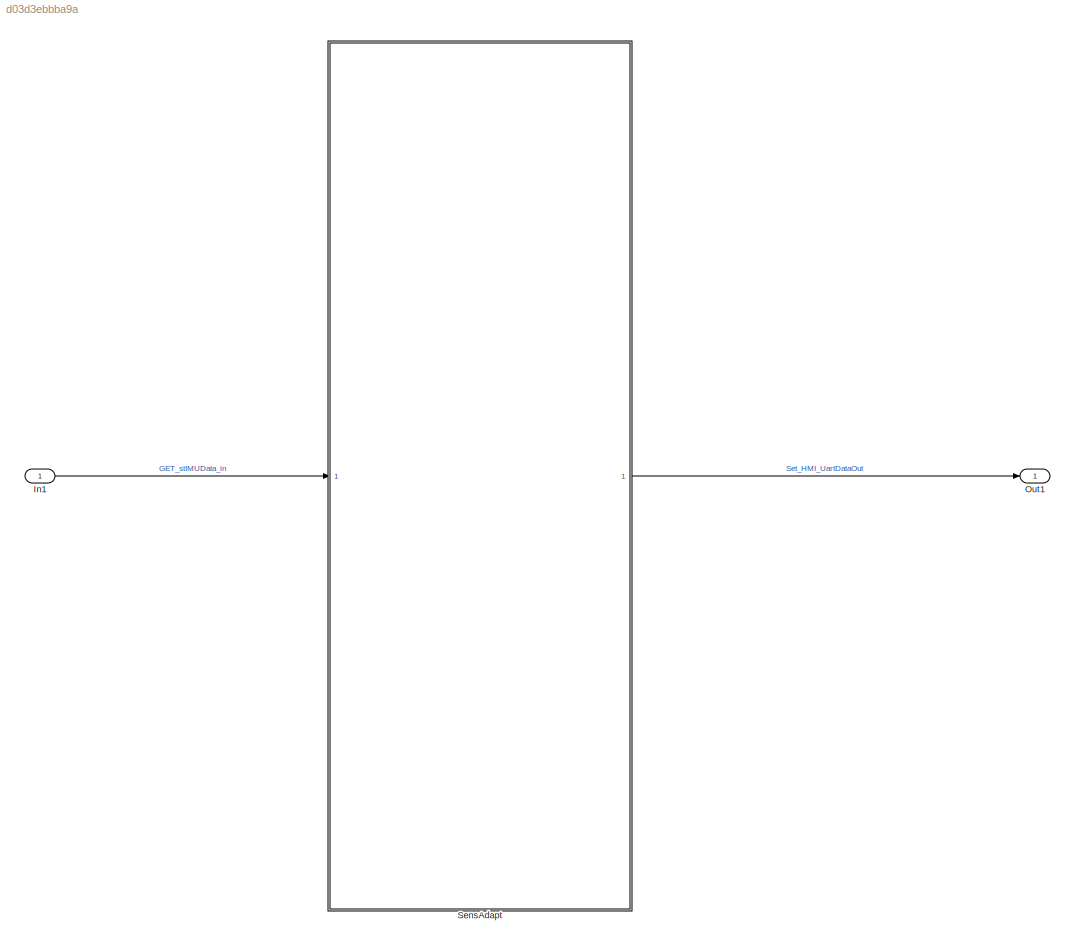
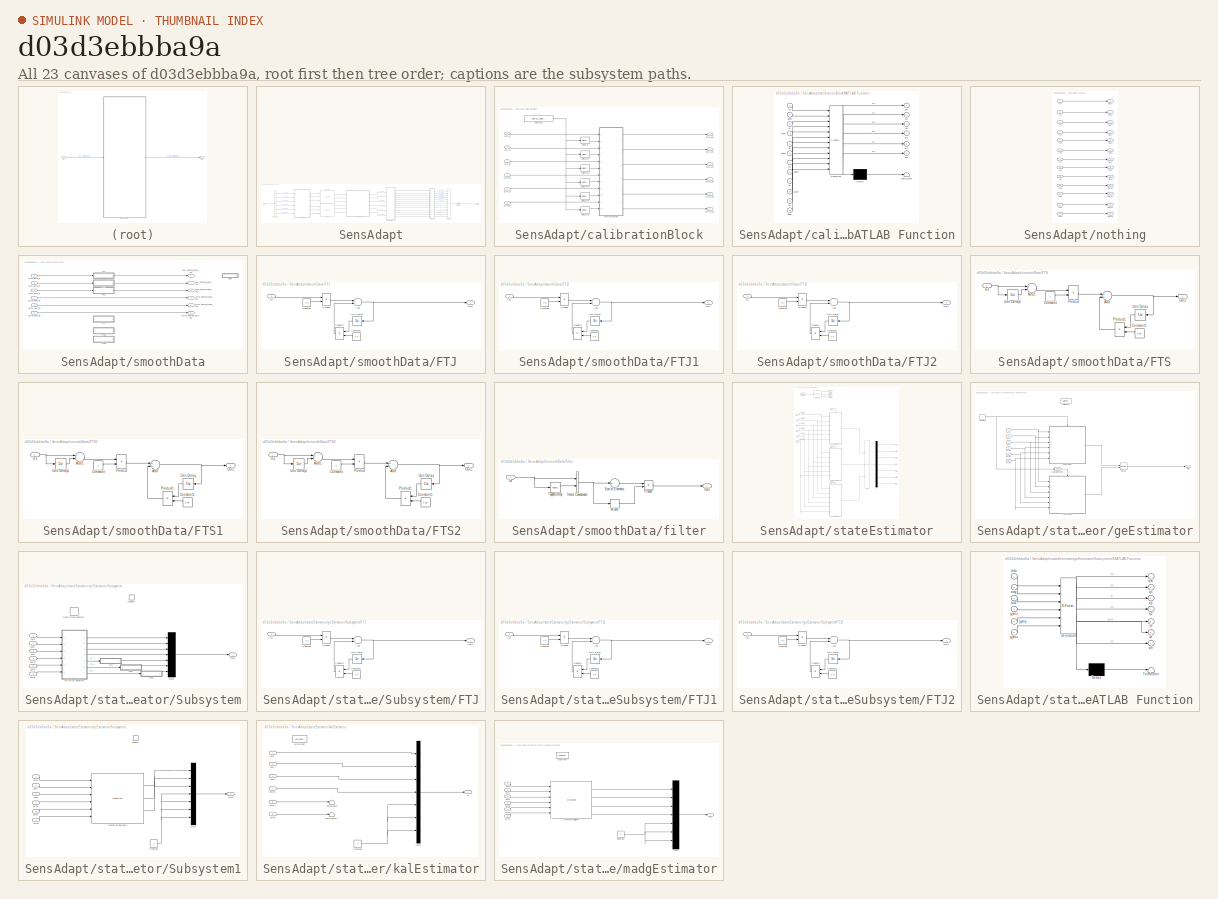
[diagram: thumbnail index - all 23 canvases of the model, root first then tree order]
MODEL slx_d03d3ebbba9a
KIND model
BLOCK [Inport] In1
  BusOutputAsStruct = on
  IconDisplay = Port number
  OutDataTypeStr = Bus: IMU_tstInRawData
BLOCK [Outport] Out1
  IconDisplay = Port number
  OutDataTypeStr = Bus: IMU_tstRawData
BLOCK [SubSystem] SensAdapt
  FunctionWithSeparateData = off
  MaskHideContents = off
  MinAlgLoopOccurrences = off
  Opaque = off
  Ports = [1, 1]
  PropExecContextOutsideSubsystem = off
  RTWSystemCode = Auto
  RequestExecContextInheritance = off
BLOCK [Reference] SensAdapt/AccConv  REF=SensAdapt_lib/AccConv
  Description = acc conversion block
  Ports = [3, 3]
  SourceBlock = SensAdapt_lib/AccConv
  convParam = 3
BLOCK [BusCreator] SensAdapt/Bus Creator
  DisplayOption = bar
  Inputs = 13
  NonVirtualBus = on
  OutDataTypeStr = Bus: IMU_tstRawData
  Ports = [13, 1]
BLOCK [BusSelector] SensAdapt/Bus Selector
  OutputSignals = AccXData,AccYData,AccZData,GyroXData,GyroYData,GyroZData
  Ports = [1, 6]
BLOCK [Reference] SensAdapt/GyroConv  REF=SensAdapt_lib/GyroConv
  Ports = [3, 3]
  SourceBlock = SensAdapt_lib/GyroConv
  convParam = 3
BLOCK [Inport] SensAdapt/In1
  IconDisplay = Port number
BLOCK [Outport] SensAdapt/Out1
  IconDisplay = Port number
BLOCK [UnitDelay] SensAdapt/Unit Delay12
  InputProcessing = Elements as channels (sample based)
  SampleTime = -1
BLOCK [SubSystem] SensAdapt/calibrationBlock
  FunctionWithSeparateData = off
  MaskHideContents = off
  MinAlgLoopOccurrences = off
  Opaque = off
  Ports = [6, 6]
  PropExecContextOutsideSubsystem = off
  RTWFcnNameOpts = Use subsystem name
  RTWSystemCode = Nonreusable function
  RequestExecContextInheritance = off
  TreatAsAtomicUnit = on
BLOCK [Constant] SensAdapt/calibrationBlock/Constant
  OutDataTypeStr = double
  Value = SENS_CalibOffsetCurve
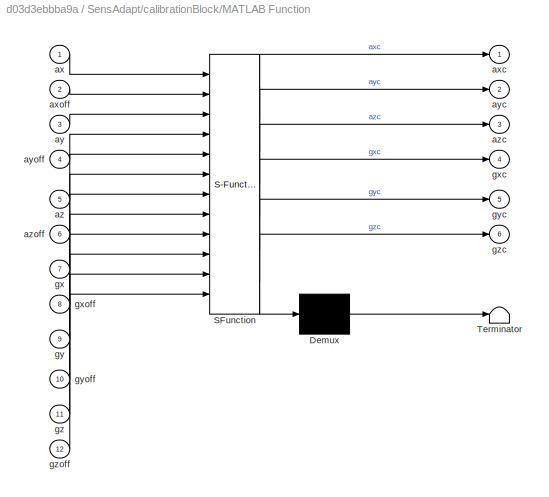
BLOCK [SubSystem] SensAdapt/calibrationBlock/MATLAB Function
  ErrorFcn = Stateflow.Translate.translate
  FunctionWithSeparateData = off
  MaskHideContents = off
  MinAlgLoopOccurrences = off
  Opaque = off
  PermitHierarchicalResolution = ExplicitOnly
  Ports = [12, 6]
  PropExecContextOutsideSubsystem = off
  RTWSystemCode = Auto
  RequestExecContextInheritance = off
  SFBlockType = MATLAB Function
  TreatAsAtomicUnit = on
BLOCK [Demux] SensAdapt/calibrationBlock/MATLAB Function/ Demux 
  Outputs = 1
  Ports = [1, 1]
BLOCK [S-Function] SensAdapt/calibrationBlock/MATLAB Function/ SFunction 
  EnableBusSupport = on
  FunctionName = sf_sfun
  PortCounts = [12 7]
  Ports = [12, 7]
  Tag = Stateflow S-Function SensAdapt 2
BLOCK [Terminator] SensAdapt/calibrationBlock/MATLAB Function/ Terminator 
BLOCK [Inport] SensAdapt/calibrationBlock/MATLAB Function/ax
  IconDisplay = Port number
BLOCK [Outport] SensAdapt/calibrationBlock/MATLAB Function/axc
  IconDisplay = Port number
BLOCK [Inport] SensAdapt/calibrationBlock/MATLAB Function/axoff
  IconDisplay = Port number
  Port = 2
BLOCK [Inport] SensAdapt/calibrationBlock/MATLAB Function/ay
  IconDisplay = Port number
  Port = 3
BLOCK [Outport] SensAdapt/calibrationBlock/MATLAB Function/ayc
  IconDisplay = Port number
  Port = 2
BLOCK [Inport] SensAdapt/calibrationBlock/MATLAB Function/ayoff
  IconDisplay = Port number
  Port = 4
BLOCK [Inport] SensAdapt/calibrationBlock/MATLAB Function/az
  IconDisplay = Port number
  Port = 5
BLOCK [Outport] SensAdapt/calibrationBlock/MATLAB Function/azc
  IconDisplay = Port number
  Port = 3
BLOCK [Inport] SensAdapt/calibrationBlock/MATLAB Function/azoff
  IconDisplay = Port number
  Port = 6
BLOCK [Inport] SensAdapt/calibrationBlock/MATLAB Function/gx
  IconDisplay = Port number
  Port = 7
BLOCK [Outport] SensAdapt/calibrationBlock/MATLAB Function/gxc
  IconDisplay = Port number
  Port = 4
BLOCK [Inport] SensAdapt/calibrationBlock/MATLAB Function/gxoff
  IconDisplay = Port number
  Port = 8
BLOCK [Inport] SensAdapt/calibrationBlock/MATLAB Function/gy
  IconDisplay = Port number
  Port = 9
BLOCK [Outport] SensAdapt/calibrationBlock/MATLAB Function/gyc
  IconDisplay = Port number
  Port = 5
BLOCK [Inport] SensAdapt/calibrationBlock/MATLAB Function/gyoff
  IconDisplay = Port number
  Port = 10
BLOCK [Inport] SensAdapt/calibrationBlock/MATLAB Function/gz
  IconDisplay = Port number
  Port = 11
BLOCK [Outport] SensAdapt/calibrationBlock/MATLAB Function/gzc
  IconDisplay = Port number
  Port = 6
BLOCK [Inport] SensAdapt/calibrationBlock/MATLAB Function/gzoff
  IconDisplay = Port number
  Port = 12
BLOCK [Selector] SensAdapt/calibrationBlock/Selector
  IndexMode = Zero-based
  IndexOptions = Index vector (dialog)
  Indices = 0
  InputPortWidth = 6
  OutputSizes = 1
  Ports = [1, 1]
BLOCK [Selector] SensAdapt/calibrationBlock/Selector1
  IndexMode = Zero-based
  IndexOptions = Index vector (dialog)
  Indices = 1
  InputPortWidth = 6
  OutputSizes = 1
  Ports = [1, 1]
BLOCK [Selector] SensAdapt/calibrationBlock/Selector2
  IndexMode = Zero-based
  IndexOptions = Index vector (dialog)
  Indices = 2
  InputPortWidth = 6
  OutputSizes = 1
  Ports = [1, 1]
BLOCK [Selector] SensAdapt/calibrationBlock/Selector3
  IndexMode = Zero-based
  IndexOptions = Index vector (dialog)
  Indices = 3
  InputPortWidth = 6
  OutputSizes = 1
  Ports = [1, 1]
BLOCK [Selector] SensAdapt/calibrationBlock/Selector4
  IndexMode = Zero-based
  IndexOptions = Index vector (dialog)
  Indices = 4
  InputPortWidth = 6
  OutputSizes = 1
  Ports = [1, 1]
BLOCK [Selector] SensAdapt/calibrationBlock/Selector5
  IndexMode = Zero-based
  IndexOptions = Index vector (dialog)
  Indices = 5
  InputPortWidth = 6
  OutputSizes = 1
  Ports = [1, 1]
BLOCK [Inport] SensAdapt/calibrationBlock/accx_in
  IconDisplay = Port number
BLOCK [Outport] SensAdapt/calibrationBlock/accx_out
  IconDisplay = Port number
  InitialOutput = 0
  OutDataTypeStr = double
BLOCK [Inport] SensAdapt/calibrationBlock/accy_in
  IconDisplay = Port number
  Port = 2
BLOCK [Outport] SensAdapt/calibrationBlock/accy_out
  IconDisplay = Port number
  InitialOutput = 0
  LockScale = on
  OutDataTypeStr = double
  Port = 2
BLOCK [Inport] SensAdapt/calibrationBlock/accz_in
  IconDisplay = Port number
  Port = 3
BLOCK [Outport] SensAdapt/calibrationBlock/accz_out
  IconDisplay = Port number
  InitialOutput = 0
  OutDataTypeStr = double
  Port = 3
BLOCK [Inport] SensAdapt/calibrationBlock/gyrox_in
  IconDisplay = Port number
  Port = 4
BLOCK [Outport] SensAdapt/calibrationBlock/gyrox_out
  IconDisplay = Port number
  InitialOutput = 0
  OutDataTypeStr = double
  Port = 4
BLOCK [Inport] SensAdapt/calibrationBlock/gyroy_in
  IconDisplay = Port number
  Port = 5
BLOCK [Outport] SensAdapt/calibrationBlock/gyroy_out
  IconDisplay = Port number
  InitialOutput = 0
  OutDataTypeStr = double
  Port = 5
BLOCK [Inport] SensAdapt/calibrationBlock/gyroz_in
  IconDisplay = Port number
  Port = 6
BLOCK [Outport] SensAdapt/calibrationBlock/gyroz_out
  IconDisplay = Port number
  InitialOutput = 0
  OutDataTypeStr = double
  Port = 6
BLOCK [SubSystem] SensAdapt/nothing
  FunctionWithSeparateData = off
  MaskHideContents = off
  MinAlgLoopOccurrences = off
  Opaque = off
  Ports = [13, 13]
  PropExecContextOutsideSubsystem = off
  RTWSystemCode = Auto
  RequestExecContextInheritance = off
BLOCK [Inport] SensAdapt/nothing/In1
  IconDisplay = Port number
BLOCK [Inport] SensAdapt/nothing/In10
  IconDisplay = Port number
  Port = 10
BLOCK [Inport] SensAdapt/nothing/In11
  IconDisplay = Port number
  Port = 11
BLOCK [Inport] SensAdapt/nothing/In12
  IconDisplay = Port number
  Port = 12
BLOCK [Inport] SensAdapt/nothing/In13
  IconDisplay = Port number
  Port = 13
BLOCK [Inport] SensAdapt/nothing/In2
  IconDisplay = Port number
  Port = 2
BLOCK [Inport] SensAdapt/nothing/In3
  IconDisplay = Port number
  Port = 3
BLOCK [Inport] SensAdapt/nothing/In4
  IconDisplay = Port number
  Port = 4
BLOCK [Inport] SensAdapt/nothing/In5
  IconDisplay = Port number
  Port = 5
BLOCK [Inport] SensAdapt/nothing/In6
  IconDisplay = Port number
  Port = 6
BLOCK [Inport] SensAdapt/nothing/In7
  IconDisplay = Port number
  Port = 7
BLOCK [Inport] SensAdapt/nothing/In8
  IconDisplay = Port number
  Port = 8
BLOCK [Inport] SensAdapt/nothing/In9
  IconDisplay = Port number
  Port = 9
BLOCK [Outport] SensAdapt/nothing/Out1
  IconDisplay = Port number
BLOCK [Outport] SensAdapt/nothing/Out10
  IconDisplay = Port number
  Port = 10
BLOCK [Outport] SensAdapt/nothing/Out11
  IconDisplay = Port number
  Port = 11
BLOCK [Outport] SensAdapt/nothing/Out12
  IconDisplay = Port number
  Port = 12
BLOCK [Outport] SensAdapt/nothing/Out13
  IconDisplay = Port number
  Port = 13
BLOCK [Outport] SensAdapt/nothing/Out2
  IconDisplay = Port number
  Port = 2
BLOCK [Outport] SensAdapt/nothing/Out3
  IconDisplay = Port number
  Port = 3
BLOCK [Outport] SensAdapt/nothing/Out4
  IconDisplay = Port number
  Port = 4
BLOCK [Outport] SensAdapt/nothing/Out5
  IconDisplay = Port number
  Port = 5
BLOCK [Outport] SensAdapt/nothing/Out6
  IconDisplay = Port number
  Port = 6
BLOCK [Outport] SensAdapt/nothing/Out7
  IconDisplay = Port number
  Port = 7
BLOCK [Outport] SensAdapt/nothing/Out8
  IconDisplay = Port number
  Port = 8
BLOCK [Outport] SensAdapt/nothing/Out9
  IconDisplay = Port number
  Port = 9
BLOCK [SubSystem] SensAdapt/smoothData
  FunctionWithSeparateData = off
  MaskHideContents = off
  MinAlgLoopOccurrences = off
  Opaque = off
  Ports = [6, 6]
  PropExecContextOutsideSubsystem = off
  RTWFcnNameOpts = Use subsystem name
  RTWSystemCode = Nonreusable function
  RequestExecContextInheritance = off
  TreatAsAtomicUnit = on
BLOCK [SubSystem] SensAdapt/smoothData/FTJ
  FunctionWithSeparateData = off
  MaskHideContents = off
  MinAlgLoopOccurrences = off
  Opaque = off
  Ports = [1, 1]
  PropExecContextOutsideSubsystem = off
  RTWSystemCode = Auto
  RequestExecContextInheritance = off
BLOCK [Sum] SensAdapt/smoothData/FTJ/Add
  InputSameDT = off
  OutDataTypeStr = Inherit: Inherit via internal rule
  Ports = [2, 1]
  SaturateOnIntegerOverflow = off
BLOCK [Constant] SensAdapt/smoothData/FTJ/Constant
  Value = 0.2
BLOCK [Constant] SensAdapt/smoothData/FTJ/Constant1
  Value = 0.8
BLOCK [Inport] SensAdapt/smoothData/FTJ/In1
  IconDisplay = Port number
BLOCK [Outport] SensAdapt/smoothData/FTJ/Out1
  IconDisplay = Port number
BLOCK [Product] SensAdapt/smoothData/FTJ/Product
  InputSameDT = off
  OutDataTypeStr = Inherit: Inherit via internal rule
  Ports = [2, 1]
  RndMeth = Floor
  SaturateOnIntegerOverflow = off
BLOCK [Product] SensAdapt/smoothData/FTJ/Product1
  InputSameDT = off
  OutDataTypeStr = Inherit: Inherit via internal rule
  Ports = [2, 1]
  RndMeth = Floor
  SaturateOnIntegerOverflow = off
BLOCK [UnitDelay] SensAdapt/smoothData/FTJ/Unit Delay
  InputProcessing = Elements as channels (sample based)
  SampleTime = -1
BLOCK [SubSystem] SensAdapt/smoothData/FTJ1
  FunctionWithSeparateData = off
  MaskHideContents = off
  MinAlgLoopOccurrences = off
  Opaque = off
  Ports = [1, 1]
  PropExecContextOutsideSubsystem = off
  RTWSystemCode = Auto
  RequestExecContextInheritance = off
BLOCK [Sum] SensAdapt/smoothData/FTJ1/Add
  InputSameDT = off
  OutDataTypeStr = Inherit: Inherit via internal rule
  Ports = [2, 1]
  SaturateOnIntegerOverflow = off
BLOCK [Constant] SensAdapt/smoothData/FTJ1/Constant
  Value = 0.2
BLOCK [Constant] SensAdapt/smoothData/FTJ1/Constant1
  Value = 0.8
BLOCK [Inport] SensAdapt/smoothData/FTJ1/In1
  IconDisplay = Port number
BLOCK [Outport] SensAdapt/smoothData/FTJ1/Out1
  IconDisplay = Port number
BLOCK [Product] SensAdapt/smoothData/FTJ1/Product
  InputSameDT = off
  OutDataTypeStr = Inherit: Inherit via internal rule
  Ports = [2, 1]
  RndMeth = Floor
  SaturateOnIntegerOverflow = off
BLOCK [Product] SensAdapt/smoothData/FTJ1/Product1
  InputSameDT = off
  OutDataTypeStr = Inherit: Inherit via internal rule
  Ports = [2, 1]
  RndMeth = Floor
  SaturateOnIntegerOverflow = off
BLOCK [UnitDelay] SensAdapt/smoothData/FTJ1/Unit Delay
  InputProcessing = Elements as channels (sample based)
  SampleTime = -1
BLOCK [SubSystem] SensAdapt/smoothData/FTJ2
  FunctionWithSeparateData = off
  MaskHideContents = off
  MinAlgLoopOccurrences = off
  Opaque = off
  Ports = [1, 1]
  PropExecContextOutsideSubsystem = off
  RTWSystemCode = Auto
  RequestExecContextInheritance = off
BLOCK [Sum] SensAdapt/smoothData/FTJ2/Add
  InputSameDT = off
  OutDataTypeStr = Inherit: Inherit via internal rule
  Ports = [2, 1]
  SaturateOnIntegerOverflow = off
BLOCK [Constant] SensAdapt/smoothData/FTJ2/Constant
  Value = 0.2
BLOCK [Constant] SensAdapt/smoothData/FTJ2/Constant1
  Value = 0.8
BLOCK [Inport] SensAdapt/smoothData/FTJ2/In1
  IconDisplay = Port number
BLOCK [Outport] SensAdapt/smoothData/FTJ2/Out1
  IconDisplay = Port number
BLOCK [Product] SensAdapt/smoothData/FTJ2/Product
  InputSameDT = off
  OutDataTypeStr = Inherit: Inherit via internal rule
  Ports = [2, 1]
  RndMeth = Floor
  SaturateOnIntegerOverflow = off
BLOCK [Product] SensAdapt/smoothData/FTJ2/Product1
  InputSameDT = off
  OutDataTypeStr = Inherit: Inherit via internal rule
  Ports = [2, 1]
  RndMeth = Floor
  SaturateOnIntegerOverflow = off
BLOCK [UnitDelay] SensAdapt/smoothData/FTJ2/Unit Delay
  InputProcessing = Elements as channels (sample based)
  SampleTime = -1
BLOCK [SubSystem] SensAdapt/smoothData/FTS
  Commented = on
  FunctionWithSeparateData = off
  MaskHideContents = off
  MinAlgLoopOccurrences = off
  Opaque = off
  Ports = [1, 1]
  PropExecContextOutsideSubsystem = off
  RTWSystemCode = Auto
  RequestExecContextInheritance = off
BLOCK [Sum] SensAdapt/smoothData/FTS/Add
  InputSameDT = off
  OutDataTypeStr = Inherit: Inherit via internal rule
  Ports = [2, 1]
  SaturateOnIntegerOverflow = off
BLOCK [Sum] SensAdapt/smoothData/FTS/Add1
  InputSameDT = off
  Inputs = +-
  OutDataTypeStr = Inherit: Inherit via internal rule
  Ports = [2, 1]
  SaturateOnIntegerOverflow = off
BLOCK [Constant] SensAdapt/smoothData/FTS/Constant
  Value = 2
BLOCK [Constant] SensAdapt/smoothData/FTS/Constant1
  Value = 0.98
BLOCK [Inport] SensAdapt/smoothData/FTS/In1
  IconDisplay = Port number
BLOCK [Outport] SensAdapt/smoothData/FTS/Out1
  IconDisplay = Port number
BLOCK [Product] SensAdapt/smoothData/FTS/Product
  InputSameDT = off
  OutDataTypeStr = Inherit: Inherit via internal rule
  Ports = [2, 1]
  RndMeth = Floor
  SaturateOnIntegerOverflow = off
BLOCK [Product] SensAdapt/smoothData/FTS/Product1
  InputSameDT = off
  OutDataTypeStr = Inherit: Inherit via internal rule
  Ports = [2, 1]
  RndMeth = Floor
  SaturateOnIntegerOverflow = off
BLOCK [UnitDelay] SensAdapt/smoothData/FTS/Unit Delay
  InputProcessing = Elements as channels (sample based)
  SampleTime = -1
BLOCK [UnitDelay] SensAdapt/smoothData/FTS/Unit Delay1
  InputProcessing = Elements as channels (sample based)
  SampleTime = -1
BLOCK [SubSystem] SensAdapt/smoothData/FTS1
  Commented = on
  FunctionWithSeparateData = off
  MaskHideContents = off
  MinAlgLoopOccurrences = off
  Opaque = off
  Ports = [1, 1]
  PropExecContextOutsideSubsystem = off
  RTWSystemCode = Auto
  RequestExecContextInheritance = off
BLOCK [Sum] SensAdapt/smoothData/FTS1/Add
  InputSameDT = off
  OutDataTypeStr = Inherit: Inherit via internal rule
  Ports = [2, 1]
  SaturateOnIntegerOverflow = off
BLOCK [Sum] SensAdapt/smoothData/FTS1/Add1
  InputSameDT = off
  Inputs = +-
  OutDataTypeStr = Inherit: Inherit via internal rule
  Ports = [2, 1]
  SaturateOnIntegerOverflow = off
BLOCK [Constant] SensAdapt/smoothData/FTS1/Constant
  Value = 2
BLOCK [Constant] SensAdapt/smoothData/FTS1/Constant1
  Value = 0.98
BLOCK [Inport] SensAdapt/smoothData/FTS1/In1
  IconDisplay = Port number
BLOCK [Outport] SensAdapt/smoothData/FTS1/Out1
  IconDisplay = Port number
BLOCK [Product] SensAdapt/smoothData/FTS1/Product
  InputSameDT = off
  OutDataTypeStr = Inherit: Inherit via internal rule
  Ports = [2, 1]
  RndMeth = Floor
  SaturateOnIntegerOverflow = off
BLOCK [Product] SensAdapt/smoothData/FTS1/Product1
  InputSameDT = off
  OutDataTypeStr = Inherit: Inherit via internal rule
  Ports = [2, 1]
  RndMeth = Floor
  SaturateOnIntegerOverflow = off
BLOCK [UnitDelay] SensAdapt/smoothData/FTS1/Unit Delay
  InputProcessing = Elements as channels (sample based)
  SampleTime = -1
BLOCK [UnitDelay] SensAdapt/smoothData/FTS1/Unit Delay1
  InputProcessing = Elements as channels (sample based)
  SampleTime = -1
BLOCK [SubSystem] SensAdapt/smoothData/FTS2
  Commented = on
  FunctionWithSeparateData = off
  MaskHideContents = off
  MinAlgLoopOccurrences = off
  Opaque = off
  Ports = [1, 1]
  PropExecContextOutsideSubsystem = off
  RTWSystemCode = Auto
  RequestExecContextInheritance = off
BLOCK [Sum] SensAdapt/smoothData/FTS2/Add
  InputSameDT = off
  OutDataTypeStr = Inherit: Inherit via internal rule
  Ports = [2, 1]
  SaturateOnIntegerOverflow = off
BLOCK [Sum] SensAdapt/smoothData/FTS2/Add1
  InputSameDT = off
  Inputs = +-
  OutDataTypeStr = Inherit: Inherit via internal rule
  Ports = [2, 1]
  SaturateOnIntegerOverflow = off
BLOCK [Constant] SensAdapt/smoothData/FTS2/Constant
  Value = 2
BLOCK [Constant] SensAdapt/smoothData/FTS2/Constant1
  Value = 0.98
BLOCK [Inport] SensAdapt/smoothData/FTS2/In1
  IconDisplay = Port number
BLOCK [Outport] SensAdapt/smoothData/FTS2/Out1
  IconDisplay = Port number
BLOCK [Product] SensAdapt/smoothData/FTS2/Product
  InputSameDT = off
  OutDataTypeStr = Inherit: Inherit via internal rule
  Ports = [2, 1]
  RndMeth = Floor
  SaturateOnIntegerOverflow = off
BLOCK [Product] SensAdapt/smoothData/FTS2/Product1
  InputSameDT = off
  OutDataTypeStr = Inherit: Inherit via internal rule
  Ports = [2, 1]
  RndMeth = Floor
  SaturateOnIntegerOverflow = off
BLOCK [UnitDelay] SensAdapt/smoothData/FTS2/Unit Delay
  InputProcessing = Elements as channels (sample based)
  SampleTime = -1
BLOCK [UnitDelay] SensAdapt/smoothData/FTS2/Unit Delay1
  InputProcessing = Elements as channels (sample based)
  SampleTime = -1
BLOCK [Inport] SensAdapt/smoothData/accx_data_in
  IconDisplay = Port number
BLOCK [Outport] SensAdapt/smoothData/accx_filtered_data_out
  IconDisplay = Port number
  OutDataTypeStr = double
BLOCK [Inport] SensAdapt/smoothData/accy_data_in
  IconDisplay = Port number
  Port = 2
BLOCK [Outport] SensAdapt/smoothData/accy_filtered_data_out
  IconDisplay = Port number
  OutDataTypeStr = double
  Port = 2
BLOCK [Inport] SensAdapt/smoothData/accz_data_in
  IconDisplay = Port number
  Port = 3
BLOCK [Outport] SensAdapt/smoothData/accz_filtered_data_out
  IconDisplay = Port number
  OutDataTypeStr = double
  Port = 3
BLOCK [SubSystem] SensAdapt/smoothData/filter
  Commented = on
  FunctionWithSeparateData = off
  MaskHideContents = off
  MinAlgLoopOccurrences = off
  Opaque = off
  Ports = [1, 1]
  PropExecContextOutsideSubsystem = off
  RTWSystemCode = Auto
  RequestExecContextInheritance = off
BLOCK [Inport] SensAdapt/smoothData/filter/In1
  IconDisplay = Port number
BLOCK [Outport] SensAdapt/smoothData/filter/Out1
  IconDisplay = Port number
BLOCK [Product] SensAdapt/smoothData/filter/Product
  InputSameDT = off
  Inputs = */
  OutDataTypeStr = double
  Ports = [2, 1]
  RndMeth = Floor
  SaturateOnIntegerOverflow = off
BLOCK [Sum] SensAdapt/smoothData/filter/Sum of Elements
  AccumDataTypeStr = double
  InputSameDT = off
  Inputs = +
  OutDataTypeStr = double
  Ports = [1, 1]
  SaturateOnIntegerOverflow = off
BLOCK [Reference] SensAdapt/smoothData/filter/Tapped Delay  REF=simulink/Discrete/Tapped Delay
  DelayOrder = Oldest
  NumDelays = 9
  Ports = [1, 1]
  SourceBlock = simulink/Discrete/Tapped Delay
  SourceType = Tapped Delay Line
  includeCurrent = off
  samptime = -1
  vinit = 0
BLOCK [Concatenate] SensAdapt/smoothData/filter/Vector Concatenate
  Ports = [2, 1]
BLOCK [Width] SensAdapt/smoothData/filter/Width
  DataType = uint16
BLOCK [Inport] SensAdapt/smoothData/gyrox_data_in
  IconDisplay = Port number
  Port = 4
BLOCK [Outport] SensAdapt/smoothData/gyrox_filtered_data_out
  IconDisplay = Port number
  OutDataTypeStr = double
  Port = 4
BLOCK [Inport] SensAdapt/smoothData/gyroy_data_in
  IconDisplay = Port number
  Port = 5
BLOCK [Outport] SensAdapt/smoothData/gyroy_filtered_data_out
  IconDisplay = Port number
  OutDataTypeStr = double
  Port = 5
BLOCK [Inport] SensAdapt/smoothData/gyroz_data_in
  IconDisplay = Port number
  Port = 6
BLOCK [Outport] SensAdapt/smoothData/gyroz_filtered_data_out
  IconDisplay = Port number
  OutDataTypeStr = double
  Port = 6
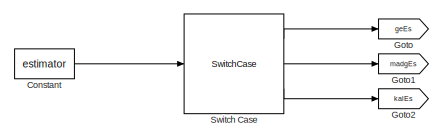
[diagram: SensAdapt/stateEstimator - part 1/3, top left region]
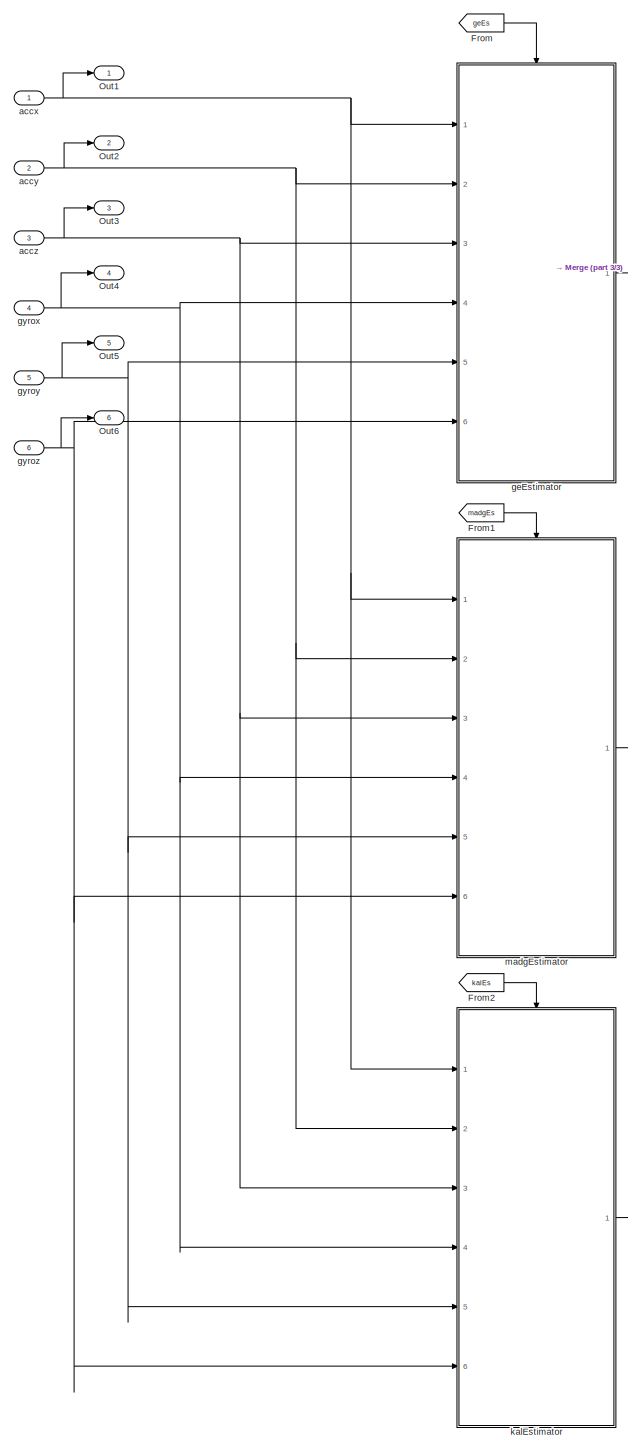
[diagram: SensAdapt/stateEstimator - part 2/3, left side, full height]
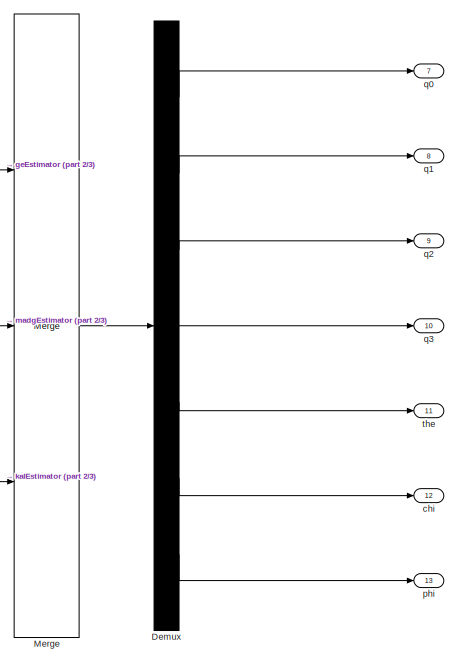
[diagram: SensAdapt/stateEstimator - part 3/3, middle right region]
BLOCK [SubSystem] SensAdapt/stateEstimator
  FunctionWithSeparateData = off
  MaskHideContents = off
  MinAlgLoopOccurrences = off
  Opaque = off
  Ports = [6, 13]
  PropExecContextOutsideSubsystem = off
  RTWSystemCode = Auto
  RequestExecContextInheritance = off
BLOCK [Constant] SensAdapt/stateEstimator/Constant
  Value = estimator
BLOCK [Demux] SensAdapt/stateEstimator/Demux
  DisplayOption = bar
  Outputs = 7
  Ports = [1, 7]
BLOCK [From] SensAdapt/stateEstimator/From
  GotoTag = geEs
BLOCK [From] SensAdapt/stateEstimator/From1
  GotoTag = madgEs
BLOCK [From] SensAdapt/stateEstimator/From2
  GotoTag = kalEs
BLOCK [Goto] SensAdapt/stateEstimator/Goto
  GotoTag = geEs
BLOCK [Goto] SensAdapt/stateEstimator/Goto1
  GotoTag = madgEs
BLOCK [Goto] SensAdapt/stateEstimator/Goto2
  GotoTag = kalEs
BLOCK [Merge] SensAdapt/stateEstimator/Merge
  InitialOutput = 0
  Inputs = 3
  Ports = [3, 1]
BLOCK [Outport] SensAdapt/stateEstimator/Out1
  IconDisplay = Port number
BLOCK [Outport] SensAdapt/stateEstimator/Out2
  IconDisplay = Port number
  Port = 2
BLOCK [Outport] SensAdapt/stateEstimator/Out3
  IconDisplay = Port number
  Port = 3
BLOCK [Outport] SensAdapt/stateEstimator/Out4
  IconDisplay = Port number
  Port = 4
BLOCK [Outport] SensAdapt/stateEstimator/Out5
  IconDisplay = Port number
  Port = 5
BLOCK [Outport] SensAdapt/stateEstimator/Out6
  IconDisplay = Port number
  Port = 6
BLOCK [SwitchCase] SensAdapt/stateEstimator/Switch Case
  CaseConditions = {1,2,3}
  Ports = [1, 3]
  ShowDefaultCase = off
BLOCK [Inport] SensAdapt/stateEstimator/accx
  IconDisplay = Port number
BLOCK [Inport] SensAdapt/stateEstimator/accy
  IconDisplay = Port number
  Port = 2
BLOCK [Inport] SensAdapt/stateEstimator/accz
  IconDisplay = Port number
  Port = 3
BLOCK [Outport] SensAdapt/stateEstimator/chi
  IconDisplay = Port number
  Port = 12
BLOCK [SubSystem] SensAdapt/stateEstimator/geEstimator
  FunctionWithSeparateData = off
  MaskHideContents = off
  MinAlgLoopOccurrences = off
  Opaque = off
  Ports = [6, 1, 0, 0, 0, 0, 0, 1]
  PropExecContextOutsideSubsystem = off
  RTWSystemCode = Auto
  RequestExecContextInheritance = off
  TreatAsAtomicUnit = on
BLOCK [ActionPort] SensAdapt/stateEstimator/geEstimator/Action Port
  ActionType = case
BLOCK [Constant] SensAdapt/stateEstimator/geEstimator/Constant
BLOCK [Logic] SensAdapt/stateEstimator/geEstimator/Logical Operator
  AllPortsSameDT = off
  Operator = NOT
  OutDataTypeStr = boolean
  Ports = [1, 1]
BLOCK [Merge] SensAdapt/stateEstimator/geEstimator/Merge
  Ports = [2, 1]
BLOCK [Outport] SensAdapt/stateEstimator/geEstimator/Out1
  IconDisplay = Port number
  InitialOutput = 0
BLOCK [SubSystem] SensAdapt/stateEstimator/geEstimator/Subsystem
  FunctionWithSeparateData = off
  MaskHideContents = off
  MinAlgLoopOccurrences = off
  Opaque = off
  Ports = [6, 1, 1]
  PropExecContextOutsideSubsystem = off
  RTWSystemCode = Auto
  RequestExecContextInheritance = off
BLOCK [DataStoreMemory] SensAdapt/stateEstimator/geEstimator/Subsystem/Data Store Memory
  DataStoreName = R
  InitialValue = [1 0 0;0 1 0; 0 0 1]
  OutDataTypeStr = double
  ReadBeforeWriteMsg = warning
  SignalType = real
  VectorParams1D = off
  WriteAfterReadMsg = warning
  WriteAfterWriteMsg = warning
BLOCK [EnablePort] SensAdapt/stateEstimator/geEstimator/Subsystem/Enable
  Ports = []
BLOCK [SubSystem] SensAdapt/stateEstimator/geEstimator/Subsystem/FTJ
  FunctionWithSeparateData = off
  MaskHideContents = off
  MinAlgLoopOccurrences = off
  Opaque = off
  Ports = [1, 1]
  PropExecContextOutsideSubsystem = off
  RTWSystemCode = Auto
  RequestExecContextInheritance = off
BLOCK [Sum] SensAdapt/stateEstimator/geEstimator/Subsystem/FTJ/Add
  InputSameDT = off
  OutDataTypeStr = Inherit: Inherit via internal rule
  Ports = [2, 1]
  SaturateOnIntegerOverflow = off
BLOCK [Constant] SensAdapt/stateEstimator/geEstimator/Subsystem/FTJ/Constant
  Value = 0.2
BLOCK [Constant] SensAdapt/stateEstimator/geEstimator/Subsystem/FTJ/Constant1
  Value = 0.8
BLOCK [Inport] SensAdapt/stateEstimator/geEstimator/Subsystem/FTJ/In1
  IconDisplay = Port number
BLOCK [Outport] SensAdapt/stateEstimator/geEstimator/Subsystem/FTJ/Out1
  IconDisplay = Port number
BLOCK [Product] SensAdapt/stateEstimator/geEstimator/Subsystem/FTJ/Product
  InputSameDT = off
  OutDataTypeStr = Inherit: Inherit via internal rule
  Ports = [2, 1]
  RndMeth = Floor
  SaturateOnIntegerOverflow = off
BLOCK [Product] SensAdapt/stateEstimator/geEstimator/Subsystem/FTJ/Product1
  InputSameDT = off
  OutDataTypeStr = Inherit: Inherit via internal rule
  Ports = [2, 1]
  RndMeth = Floor
  SaturateOnIntegerOverflow = off
BLOCK [UnitDelay] SensAdapt/stateEstimator/geEstimator/Subsystem/FTJ/Unit Delay
  InputProcessing = Elements as channels (sample based)
  SampleTime = -1
BLOCK [SubSystem] SensAdapt/stateEstimator/geEstimator/Subsystem/FTJ1
  FunctionWithSeparateData = off
  MaskHideContents = off
  MinAlgLoopOccurrences = off
  Opaque = off
  Ports = [1, 1]
  PropExecContextOutsideSubsystem = off
  RTWSystemCode = Auto
  RequestExecContextInheritance = off
BLOCK [Sum] SensAdapt/stateEstimator/geEstimator/Subsystem/FTJ1/Add
  InputSameDT = off
  OutDataTypeStr = Inherit: Inherit via internal rule
  Ports = [2, 1]
  SaturateOnIntegerOverflow = off
BLOCK [Constant] SensAdapt/stateEstimator/geEstimator/Subsystem/FTJ1/Constant
  Value = 0.2
BLOCK [Constant] SensAdapt/stateEstimator/geEstimator/Subsystem/FTJ1/Constant1
  Value = 0.8
BLOCK [Inport] SensAdapt/stateEstimator/geEstimator/Subsystem/FTJ1/In1
  IconDisplay = Port number
BLOCK [Outport] SensAdapt/stateEstimator/geEstimator/Subsystem/FTJ1/Out1
  IconDisplay = Port number
BLOCK [Product] SensAdapt/stateEstimator/geEstimator/Subsystem/FTJ1/Product
  InputSameDT = off
  OutDataTypeStr = Inherit: Inherit via internal rule
  Ports = [2, 1]
  RndMeth = Floor
  SaturateOnIntegerOverflow = off
BLOCK [Product] SensAdapt/stateEstimator/geEstimator/Subsystem/FTJ1/Product1
  InputSameDT = off
  OutDataTypeStr = Inherit: Inherit via internal rule
  Ports = [2, 1]
  RndMeth = Floor
  SaturateOnIntegerOverflow = off
BLOCK [UnitDelay] SensAdapt/stateEstimator/geEstimator/Subsystem/FTJ1/Unit Delay
  InputProcessing = Elements as channels (sample based)
  SampleTime = -1
BLOCK [SubSystem] SensAdapt/stateEstimator/geEstimator/Subsystem/FTJ2
  FunctionWithSeparateData = off
  MaskHideContents = off
  MinAlgLoopOccurrences = off
  Opaque = off
  Ports = [1, 1]
  PropExecContextOutsideSubsystem = off
  RTWSystemCode = Auto
  RequestExecContextInheritance = off
BLOCK [Sum] SensAdapt/stateEstimator/geEstimator/Subsystem/FTJ2/Add
  InputSameDT = off
  OutDataTypeStr = Inherit: Inherit via internal rule
  Ports = [2, 1]
  SaturateOnIntegerOverflow = off
BLOCK [Constant] SensAdapt/stateEstimator/geEstimator/Subsystem/FTJ2/Constant
  Value = 0.2
BLOCK [Constant] SensAdapt/stateEstimator/geEstimator/Subsystem/FTJ2/Constant1
  Value = 0.8
BLOCK [Inport] SensAdapt/stateEstimator/geEstimator/Subsystem/FTJ2/In1
  IconDisplay = Port number
BLOCK [Outport] SensAdapt/stateEstimator/geEstimator/Subsystem/FTJ2/Out1
  IconDisplay = Port number
BLOCK [Product] SensAdapt/stateEstimator/geEstimator/Subsystem/FTJ2/Product
  InputSameDT = off
  OutDataTypeStr = Inherit: Inherit via internal rule
  Ports = [2, 1]
  RndMeth = Floor
  SaturateOnIntegerOverflow = off
BLOCK [Product] SensAdapt/stateEstimator/geEstimator/Subsystem/FTJ2/Product1
  InputSameDT = off
  OutDataTypeStr = Inherit: Inherit via internal rule
  Ports = [2, 1]
  RndMeth = Floor
  SaturateOnIntegerOverflow = off
BLOCK [UnitDelay] SensAdapt/stateEstimator/geEstimator/Subsystem/FTJ2/Unit Delay
  InputProcessing = Elements as channels (sample based)
  SampleTime = -1
BLOCK [SubSystem] SensAdapt/stateEstimator/geEstimator/Subsystem/MATLAB Function
  ErrorFcn = Stateflow.Translate.translate
  FunctionWithSeparateData = off
  MaskHideContents = off
  MinAlgLoopOccurrences = off
  Opaque = off
  PermitHierarchicalResolution = ExplicitOnly
  Ports = [6, 7]
  PropExecContextOutsideSubsystem = off
  RTWSystemCode = Auto
  RequestExecContextInheritance = off
  SFBlockType = MATLAB Function
  TreatAsAtomicUnit = on
BLOCK [Demux] SensAdapt/stateEstimator/geEstimator/Subsystem/MATLAB Function/ Demux 
  Outputs = 1
  Ports = [1, 1]
BLOCK [S-Function] SensAdapt/stateEstimator/geEstimator/Subsystem/MATLAB Function/ SFunction 
  EnableBusSupport = on
  FunctionName = sf_sfun
  PortCounts = [6 8]
  Ports = [6, 8]
  Tag = Stateflow S-Function SensAdapt 1
BLOCK [Terminator] SensAdapt/stateEstimator/geEstimator/Subsystem/MATLAB Function/ Terminator 
BLOCK [Inport] SensAdapt/stateEstimator/geEstimator/Subsystem/MATLAB Function/accx
  IconDisplay = Port number
BLOCK [Inport] SensAdapt/stateEstimator/geEstimator/Subsystem/MATLAB Function/accy
  IconDisplay = Port number
  Port = 2
BLOCK [Inport] SensAdapt/stateEstimator/geEstimator/Subsystem/MATLAB Function/accz
  IconDisplay = Port number
  Port = 3
BLOCK [Outport] SensAdapt/stateEstimator/geEstimator/Subsystem/MATLAB Function/ch
  IconDisplay = Port number
  Port = 6
BLOCK [Inport] SensAdapt/stateEstimator/geEstimator/Subsystem/MATLAB Function/gyrox
  IconDisplay = Port number
  Port = 4
BLOCK [Inport] SensAdapt/stateEstimator/geEstimator/Subsystem/MATLAB Function/gyroy
  IconDisplay = Port number
  Port = 5
BLOCK [Inport] SensAdapt/stateEstimator/geEstimator/Subsystem/MATLAB Function/gyroz
  IconDisplay = Port number
  Port = 6
BLOCK [Outport] SensAdapt/stateEstimator/geEstimator/Subsystem/MATLAB Function/ph
  IconDisplay = Port number
  Port = 7
BLOCK [Outport] SensAdapt/stateEstimator/geEstimator/Subsystem/MATLAB Function/qw
  IconDisplay = Port number
BLOCK [Outport] SensAdapt/stateEstimator/geEstimator/Subsystem/MATLAB Function/qx
  IconDisplay = Port number
  Port = 2
BLOCK [Outport] SensAdapt/stateEstimator/geEstimator/Subsystem/MATLAB Function/qy
  IconDisplay = Port number
  Port = 3
BLOCK [Outport] SensAdapt/stateEstimator/geEstimator/Subsystem/MATLAB Function/qz
  IconDisplay = Port number
  Port = 4
BLOCK [Outport] SensAdapt/stateEstimator/geEstimator/Subsystem/MATLAB Function/th
  IconDisplay = Port number
  Port = 5
BLOCK [Mux] SensAdapt/stateEstimator/geEstimator/Subsystem/Mux1
  DisplayOption = bar
  Inputs = 7
  Ports = [7, 1]
BLOCK [Outport] SensAdapt/stateEstimator/geEstimator/Subsystem/Out1
  IconDisplay = Port number
BLOCK [Inport] SensAdapt/stateEstimator/geEstimator/Subsystem/accx
  IconDisplay = Port number
BLOCK [Inport] SensAdapt/stateEstimator/geEstimator/Subsystem/accy
  IconDisplay = Port number
  Port = 2
BLOCK [Inport] SensAdapt/stateEstimator/geEstimator/Subsystem/accz
  IconDisplay = Port number
  Port = 3
BLOCK [Inport] SensAdapt/stateEstimator/geEstimator/Subsystem/gyrox
  IconDisplay = Port number
  Port = 4
BLOCK [Inport] SensAdapt/stateEstimator/geEstimator/Subsystem/gyroy
  IconDisplay = Port number
  Port = 5
BLOCK [Inport] SensAdapt/stateEstimator/geEstimator/Subsystem/gyroz
  IconDisplay = Port number
  Port = 6
BLOCK [SubSystem] SensAdapt/stateEstimator/geEstimator/Subsystem1
  FunctionWithSeparateData = off
  MaskHideContents = off
  MinAlgLoopOccurrences = off
  Opaque = off
  Ports = [6, 1, 1]
  PropExecContextOutsideSubsystem = off
  RTWSystemCode = Auto
  RequestExecContextInheritance = off
BLOCK [Constant] SensAdapt/stateEstimator/geEstimator/Subsystem1/Constant
  Value = 0
BLOCK [EnablePort] SensAdapt/stateEstimator/geEstimator/Subsystem1/Enable
  Ports = []
BLOCK [Mux] SensAdapt/stateEstimator/geEstimator/Subsystem1/Mux1
  DisplayOption = bar
  Inputs = 7
  Ports = [7, 1]
BLOCK [Outport] SensAdapt/stateEstimator/geEstimator/Subsystem1/Out1
  IconDisplay = Port number
BLOCK [S-Function] SensAdapt/stateEstimator/geEstimator/Subsystem1/S-Function Builder1
  CopyFcn = set_param(gcbh,'LinkStatus','none')
  EnableBusSupport = off
  FunctionName = genDigitsEst_f
  InitFcn = try, set_param(gcb,'FunctionName','genDigitsEst_f'), end
  OpenFcn = sfunctionwizard(gcbh)
  Ports = [6, 3]
  PreSaveFcn = try, set_param(gcb,'FunctionName','genDigitsEst_f'), end
  SFunctionModules = genDigitsEst_f_wrapper genDigitsEst
BLOCK [Inport] SensAdapt/stateEstimator/geEstimator/Subsystem1/accx
  IconDisplay = Port number
BLOCK [Inport] SensAdapt/stateEstimator/geEstimator/Subsystem1/accy
  IconDisplay = Port number
  Port = 2
BLOCK [Inport] SensAdapt/stateEstimator/geEstimator/Subsystem1/accz
  IconDisplay = Port number
  Port = 3
BLOCK [Inport] SensAdapt/stateEstimator/geEstimator/Subsystem1/gyrox
  IconDisplay = Port number
  Port = 4
BLOCK [Inport] SensAdapt/stateEstimator/geEstimator/Subsystem1/gyroy
  IconDisplay = Port number
  Port = 5
BLOCK [Inport] SensAdapt/stateEstimator/geEstimator/Subsystem1/gyroz
  IconDisplay = Port number
  Port = 6
BLOCK [Inport] SensAdapt/stateEstimator/geEstimator/accx
  IconDisplay = Port number
BLOCK [Inport] SensAdapt/stateEstimator/geEstimator/accy
  IconDisplay = Port number
  Port = 2
BLOCK [Inport] SensAdapt/stateEstimator/geEstimator/accz
  IconDisplay = Port number
  Port = 3
BLOCK [Inport] SensAdapt/stateEstimator/geEstimator/gyrox
  IconDisplay = Port number
  Port = 4
BLOCK [Inport] SensAdapt/stateEstimator/geEstimator/gyroy
  IconDisplay = Port number
  Port = 5
BLOCK [Inport] SensAdapt/stateEstimator/geEstimator/gyroz
  IconDisplay = Port number
  Port = 6
BLOCK [Inport] SensAdapt/stateEstimator/gyrox
  IconDisplay = Port number
  Port = 4
BLOCK [Inport] SensAdapt/stateEstimator/gyroy
  IconDisplay = Port number
  Port = 5
BLOCK [Inport] SensAdapt/stateEstimator/gyroz
  IconDisplay = Port number
  Port = 6
BLOCK [SubSystem] SensAdapt/stateEstimator/kalEstimator
  FunctionWithSeparateData = off
  MaskHideContents = off
  MinAlgLoopOccurrences = off
  Opaque = off
  Ports = [6, 1, 0, 0, 0, 0, 0, 1]
  PropExecContextOutsideSubsystem = off
  RTWSystemCode = Auto
  RequestExecContextInheritance = off
  TreatAsAtomicUnit = on
BLOCK [ActionPort] SensAdapt/stateEstimator/kalEstimator/Action Port
  ActionType = case
BLOCK [Constant] SensAdapt/stateEstimator/kalEstimator/Constant
  Value = 0
BLOCK [Mux] SensAdapt/stateEstimator/kalEstimator/Mux2
  DisplayOption = bar
  Inputs = 7
  Ports = [7, 1]
BLOCK [Terminator] SensAdapt/stateEstimator/kalEstimator/Terminator
BLOCK [Terminator] SensAdapt/stateEstimator/kalEstimator/Terminator1
BLOCK [Inport] SensAdapt/stateEstimator/kalEstimator/accx
  IconDisplay = Port number
BLOCK [Inport] SensAdapt/stateEstimator/kalEstimator/accy
  IconDisplay = Port number
  Port = 2
BLOCK [Inport] SensAdapt/stateEstimator/kalEstimator/accz
  IconDisplay = Port number
  Port = 3
BLOCK [Inport] SensAdapt/stateEstimator/kalEstimator/gyrox
  IconDisplay = Port number
  Port = 4
BLOCK [Inport] SensAdapt/stateEstimator/kalEstimator/gyroy
  IconDisplay = Port number
  Port = 5
BLOCK [Inport] SensAdapt/stateEstimator/kalEstimator/gyroz
  IconDisplay = Port number
  Port = 6
BLOCK [Outport] SensAdapt/stateEstimator/kalEstimator/q
  IconDisplay = Port number
  InitialOutput = 0
BLOCK [SubSystem] SensAdapt/stateEstimator/madgEstimator
  FunctionWithSeparateData = off
  MaskHideContents = off
  MinAlgLoopOccurrences = off
  Opaque = off
  Ports = [6, 1, 0, 0, 0, 0, 0, 1]
  PropExecContextOutsideSubsystem = off
  RTWSystemCode = Auto
  RequestExecContextInheritance = off
  TreatAsAtomicUnit = on
BLOCK [ActionPort] SensAdapt/stateEstimator/madgEstimator/Action Port
  ActionType = case
BLOCK [Constant] SensAdapt/stateEstimator/madgEstimator/Constant
  Value = 0
BLOCK [Mux] SensAdapt/stateEstimator/madgEstimator/Mux
  DisplayOption = bar
  Inputs = 7
  Ports = [7, 1]
BLOCK [S-Function] SensAdapt/stateEstimator/madgEstimator/S-Function Builder1
  CopyFcn = set_param(gcbh,'LinkStatus','none')
  EnableBusSupport = off
  FunctionName = madgwick_f
  InitFcn = try, set_param(gcb,'FunctionName','madgwick_f'), end
  OpenFcn = sfunctionwizard(gcbh)
  Ports = [6, 4]
  PreSaveFcn = try, set_param(gcb,'FunctionName','madgwick_f'), end
  SFunctionModules = madgwick_f_wrapper MadgwickAHRS
BLOCK [Inport] SensAdapt/stateEstimator/madgEstimator/accx
  IconDisplay = Port number
BLOCK [Inport] SensAdapt/stateEstimator/madgEstimator/accy
  IconDisplay = Port number
  Port = 2
BLOCK [Inport] SensAdapt/stateEstimator/madgEstimator/accz
  IconDisplay = Port number
  Port = 3
BLOCK [Inport] SensAdapt/stateEstimator/madgEstimator/gyrox
  IconDisplay = Port number
  Port = 4
BLOCK [Inport] SensAdapt/stateEstimator/madgEstimator/gyroy
  IconDisplay = Port number
  Port = 5
BLOCK [Inport] SensAdapt/stateEstimator/madgEstimator/gyroz
  IconDisplay = Port number
  Port = 6
BLOCK [Outport] SensAdapt/stateEstimator/madgEstimator/q
  IconDisplay = Port number
  InitialOutput = 0
BLOCK [Outport] SensAdapt/stateEstimator/phi
  IconDisplay = Port number
  Port = 13
BLOCK [Outport] SensAdapt/stateEstimator/q0
  IconDisplay = Port number
  Port = 7
BLOCK [Outport] SensAdapt/stateEstimator/q1
  IconDisplay = Port number
  Port = 8
BLOCK [Outport] SensAdapt/stateEstimator/q2
  IconDisplay = Port number
  Port = 9
BLOCK [Outport] SensAdapt/stateEstimator/q3
  IconDisplay = Port number
  Port = 10
BLOCK [Outport] SensAdapt/stateEstimator/the
  IconDisplay = Port number
  Port = 11
ANNOTATION SensAdapt/stateEstimator/geEstimator/Subsystem: rot x
ANNOTATION SensAdapt/stateEstimator/geEstimator/Subsystem: rot y
ANNOTATION SensAdapt/stateEstimator/geEstimator/Subsystem: rot z
LINE In1:1 -> SensAdapt:1
LINE SensAdapt/AccConv:1 -> SensAdapt/smoothData:1
LINE SensAdapt/AccConv:2 -> SensAdapt/smoothData:2
LINE SensAdapt/AccConv:3 -> SensAdapt/smoothData:3
LINE SensAdapt/Bus Creator:1 -> SensAdapt/Unit Delay12:1
LINE SensAdapt/Bus Selector:1 -> SensAdapt/calibrationBlock:1
LINE SensAdapt/Bus Selector:2 -> SensAdapt/calibrationBlock:2
LINE SensAdapt/Bus Selector:3 -> SensAdapt/calibrationBlock:3
LINE SensAdapt/Bus Selector:4 -> SensAdapt/calibrationBlock:4
LINE SensAdapt/Bus Selector:5 -> SensAdapt/calibrationBlock:5
LINE SensAdapt/Bus Selector:6 -> SensAdapt/calibrationBlock:6
LINE SensAdapt/GyroConv:1 -> SensAdapt/smoothData:4
LINE SensAdapt/GyroConv:2 -> SensAdapt/smoothData:5
LINE SensAdapt/GyroConv:3 -> SensAdapt/smoothData:6
LINE SensAdapt/In1:1 -> SensAdapt/Bus Selector:1
LINE SensAdapt/Unit Delay12:1 -> SensAdapt/Out1:1
NET SensAdapt/calibrationBlock/Constant:1 -> SensAdapt/calibrationBlock/Selector1:1, SensAdapt/calibrationBlock/Selector2:1, SensAdapt/calibrationBlock/Selector3:1, SensAdapt/calibrationBlock/Selector4:1, SensAdapt/calibrationBlock/Selector5:1, SensAdapt/calibrationBlock/Selector:1
LINE SensAdapt/calibrationBlock/MATLAB Function:1 -> SensAdapt/calibrationBlock/accx_out:1
LINE SensAdapt/calibrationBlock/MATLAB Function:2 -> SensAdapt/calibrationBlock/accy_out:1
LINE SensAdapt/calibrationBlock/MATLAB Function:3 -> SensAdapt/calibrationBlock/accz_out:1
LINE SensAdapt/calibrationBlock/MATLAB Function:4 -> SensAdapt/calibrationBlock/gyrox_out:1
LINE SensAdapt/calibrationBlock/MATLAB Function:5 -> SensAdapt/calibrationBlock/gyroy_out:1
LINE SensAdapt/calibrationBlock/MATLAB Function:6 -> SensAdapt/calibrationBlock/gyroz_out:1
LINE SensAdapt/calibrationBlock/Selector1:1 -> SensAdapt/calibrationBlock/MATLAB Function:4
LINE SensAdapt/calibrationBlock/Selector2:1 -> SensAdapt/calibrationBlock/MATLAB Function:6
LINE SensAdapt/calibrationBlock/Selector3:1 -> SensAdapt/calibrationBlock/MATLAB Function:8
LINE SensAdapt/calibrationBlock/Selector4:1 -> SensAdapt/calibrationBlock/MATLAB Function:10
LINE SensAdapt/calibrationBlock/Selector5:1 -> SensAdapt/calibrationBlock/MATLAB Function:12
LINE SensAdapt/calibrationBlock/Selector:1 -> SensAdapt/calibrationBlock/MATLAB Function:2
LINE SensAdapt/calibrationBlock/accx_in:1 -> SensAdapt/calibrationBlock/MATLAB Function:1
LINE SensAdapt/calibrationBlock/accy_in:1 -> SensAdapt/calibrationBlock/MATLAB Function:3
LINE SensAdapt/calibrationBlock/accz_in:1 -> SensAdapt/calibrationBlock/MATLAB Function:5
LINE SensAdapt/calibrationBlock/gyrox_in:1 -> SensAdapt/calibrationBlock/MATLAB Function:7
LINE SensAdapt/calibrationBlock/gyroy_in:1 -> SensAdapt/calibrationBlock/MATLAB Function:9
LINE SensAdapt/calibrationBlock/gyroz_in:1 -> SensAdapt/calibrationBlock/MATLAB Function:11
LINE SensAdapt/calibrationBlock:1 -> SensAdapt/AccConv:1
LINE SensAdapt/calibrationBlock:2 -> SensAdapt/AccConv:2
LINE SensAdapt/calibrationBlock:3 -> SensAdapt/AccConv:3
LINE SensAdapt/calibrationBlock:4 -> SensAdapt/GyroConv:1
LINE SensAdapt/calibrationBlock:5 -> SensAdapt/GyroConv:2
LINE SensAdapt/calibrationBlock:6 -> SensAdapt/GyroConv:3
LINE SensAdapt/nothing/In10:1 -> SensAdapt/nothing/Out10:1
LINE SensAdapt/nothing/In11:1 -> SensAdapt/nothing/Out11:1
LINE SensAdapt/nothing/In12:1 -> SensAdapt/nothing/Out12:1
LINE SensAdapt/nothing/In13:1 -> SensAdapt/nothing/Out13:1
LINE SensAdapt/nothing/In1:1 -> SensAdapt/nothing/Out1:1
LINE SensAdapt/nothing/In2:1 -> SensAdapt/nothing/Out2:1
LINE SensAdapt/nothing/In3:1 -> SensAdapt/nothing/Out3:1
LINE SensAdapt/nothing/In4:1 -> SensAdapt/nothing/Out4:1
LINE SensAdapt/nothing/In5:1 -> SensAdapt/nothing/Out5:1
LINE SensAdapt/nothing/In6:1 -> SensAdapt/nothing/Out6:1
LINE SensAdapt/nothing/In7:1 -> SensAdapt/nothing/Out7:1
LINE SensAdapt/nothing/In8:1 -> SensAdapt/nothing/Out8:1
LINE SensAdapt/nothing/In9:1 -> SensAdapt/nothing/Out9:1
LINE SensAdapt/nothing:1 -> SensAdapt/Bus Creator:1
LINE SensAdapt/nothing:10 -> SensAdapt/Bus Creator:10
LINE SensAdapt/nothing:11 -> SensAdapt/Bus Creator:11
LINE SensAdapt/nothing:12 -> SensAdapt/Bus Creator:12
LINE SensAdapt/nothing:13 -> SensAdapt/Bus Creator:13
LINE SensAdapt/nothing:2 -> SensAdapt/Bus Creator:2
LINE SensAdapt/nothing:3 -> SensAdapt/Bus Creator:3
LINE SensAdapt/nothing:4 -> SensAdapt/Bus Creator:4
LINE SensAdapt/nothing:5 -> SensAdapt/Bus Creator:5
LINE SensAdapt/nothing:6 -> SensAdapt/Bus Creator:6
LINE SensAdapt/nothing:7 -> SensAdapt/Bus Creator:7
LINE SensAdapt/nothing:8 -> SensAdapt/Bus Creator:8
LINE SensAdapt/nothing:9 -> SensAdapt/Bus Creator:9
NET SensAdapt/smoothData/FTJ/Add:1 -> SensAdapt/smoothData/FTJ/Out1:1, SensAdapt/smoothData/FTJ/Unit Delay:1
LINE SensAdapt/smoothData/FTJ/Constant1:1 -> SensAdapt/smoothData/FTJ/Product1:2
LINE SensAdapt/smoothData/FTJ/Constant:1 -> SensAdapt/smoothData/FTJ/Product:2
LINE SensAdapt/smoothData/FTJ/In1:1 -> SensAdapt/smoothData/FTJ/Product:1
LINE SensAdapt/smoothData/FTJ/Product1:1 -> SensAdapt/smoothData/FTJ/Add:2
LINE SensAdapt/smoothData/FTJ/Product:1 -> SensAdapt/smoothData/FTJ/Add:1
LINE SensAdapt/smoothData/FTJ/Unit Delay:1 -> SensAdapt/smoothData/FTJ/Product1:1
NET SensAdapt/smoothData/FTJ1/Add:1 -> SensAdapt/smoothData/FTJ1/Out1:1, SensAdapt/smoothData/FTJ1/Unit Delay:1
LINE SensAdapt/smoothData/FTJ1/Constant1:1 -> SensAdapt/smoothData/FTJ1/Product1:2
LINE SensAdapt/smoothData/FTJ1/Constant:1 -> SensAdapt/smoothData/FTJ1/Product:2
LINE SensAdapt/smoothData/FTJ1/In1:1 -> SensAdapt/smoothData/FTJ1/Product:1
LINE SensAdapt/smoothData/FTJ1/Product1:1 -> SensAdapt/smoothData/FTJ1/Add:2
LINE SensAdapt/smoothData/FTJ1/Product:1 -> SensAdapt/smoothData/FTJ1/Add:1
LINE SensAdapt/smoothData/FTJ1/Unit Delay:1 -> SensAdapt/smoothData/FTJ1/Product1:1
LINE SensAdapt/smoothData/FTJ1:1 -> SensAdapt/smoothData/accz_filtered_data_out:1
NET SensAdapt/smoothData/FTJ2/Add:1 -> SensAdapt/smoothData/FTJ2/Out1:1, SensAdapt/smoothData/FTJ2/Unit Delay:1
LINE SensAdapt/smoothData/FTJ2/Constant1:1 -> SensAdapt/smoothData/FTJ2/Product1:2
LINE SensAdapt/smoothData/FTJ2/Constant:1 -> SensAdapt/smoothData/FTJ2/Product:2
LINE SensAdapt/smoothData/FTJ2/In1:1 -> SensAdapt/smoothData/FTJ2/Product:1
LINE SensAdapt/smoothData/FTJ2/Product1:1 -> SensAdapt/smoothData/FTJ2/Add:2
LINE SensAdapt/smoothData/FTJ2/Product:1 -> SensAdapt/smoothData/FTJ2/Add:1
LINE SensAdapt/smoothData/FTJ2/Unit Delay:1 -> SensAdapt/smoothData/FTJ2/Product1:1
LINE SensAdapt/smoothData/FTJ2:1 -> SensAdapt/smoothData/accy_filtered_data_out:1
LINE SensAdapt/smoothData/FTJ:1 -> SensAdapt/smoothData/accx_filtered_data_out:1
LINE SensAdapt/smoothData/FTS/Add1:1 -> SensAdapt/smoothData/FTS/Product:1
NET SensAdapt/smoothData/FTS/Add:1 -> SensAdapt/smoothData/FTS/Out1:1, SensAdapt/smoothData/FTS/Unit Delay:1
LINE SensAdapt/smoothData/FTS/Constant1:1 -> SensAdapt/smoothData/FTS/Product1:2
LINE SensAdapt/smoothData/FTS/Constant:1 -> SensAdapt/smoothData/FTS/Product:2
NET SensAdapt/smoothData/FTS/In1:1 -> SensAdapt/smoothData/FTS/Add1:1, SensAdapt/smoothData/FTS/Unit Delay1:1
LINE SensAdapt/smoothData/FTS/Product1:1 -> SensAdapt/smoothData/FTS/Add:2
LINE SensAdapt/smoothData/FTS/Product:1 -> SensAdapt/smoothData/FTS/Add:1
LINE SensAdapt/smoothData/FTS/Unit Delay1:1 -> SensAdapt/smoothData/FTS/Add1:2
LINE SensAdapt/smoothData/FTS/Unit Delay:1 -> SensAdapt/smoothData/FTS/Product1:1
LINE SensAdapt/smoothData/FTS1/Add1:1 -> SensAdapt/smoothData/FTS1/Product:1
NET SensAdapt/smoothData/FTS1/Add:1 -> SensAdapt/smoothData/FTS1/Out1:1, SensAdapt/smoothData/FTS1/Unit Delay:1
LINE SensAdapt/smoothData/FTS1/Constant1:1 -> SensAdapt/smoothData/FTS1/Product1:2
LINE SensAdapt/smoothData/FTS1/Constant:1 -> SensAdapt/smoothData/FTS1/Product:2
NET SensAdapt/smoothData/FTS1/In1:1 -> SensAdapt/smoothData/FTS1/Add1:1, SensAdapt/smoothData/FTS1/Unit Delay1:1
LINE SensAdapt/smoothData/FTS1/Product1:1 -> SensAdapt/smoothData/FTS1/Add:2
LINE SensAdapt/smoothData/FTS1/Product:1 -> SensAdapt/smoothData/FTS1/Add:1
LINE SensAdapt/smoothData/FTS1/Unit Delay1:1 -> SensAdapt/smoothData/FTS1/Add1:2
LINE SensAdapt/smoothData/FTS1/Unit Delay:1 -> SensAdapt/smoothData/FTS1/Product1:1
LINE SensAdapt/smoothData/FTS2/Add1:1 -> SensAdapt/smoothData/FTS2/Product:1
NET SensAdapt/smoothData/FTS2/Add:1 -> SensAdapt/smoothData/FTS2/Out1:1, SensAdapt/smoothData/FTS2/Unit Delay:1
LINE SensAdapt/smoothData/FTS2/Constant1:1 -> SensAdapt/smoothData/FTS2/Product1:2
LINE SensAdapt/smoothData/FTS2/Constant:1 -> SensAdapt/smoothData/FTS2/Product:2
NET SensAdapt/smoothData/FTS2/In1:1 -> SensAdapt/smoothData/FTS2/Add1:1, SensAdapt/smoothData/FTS2/Unit Delay1:1
LINE SensAdapt/smoothData/FTS2/Product1:1 -> SensAdapt/smoothData/FTS2/Add:2
LINE SensAdapt/smoothData/FTS2/Product:1 -> SensAdapt/smoothData/FTS2/Add:1
LINE SensAdapt/smoothData/FTS2/Unit Delay1:1 -> SensAdapt/smoothData/FTS2/Add1:2
LINE SensAdapt/smoothData/FTS2/Unit Delay:1 -> SensAdapt/smoothData/FTS2/Product1:1
LINE SensAdapt/smoothData/accx_data_in:1 -> SensAdapt/smoothData/FTJ:1
LINE SensAdapt/smoothData/accy_data_in:1 -> SensAdapt/smoothData/FTJ2:1
LINE SensAdapt/smoothData/accz_data_in:1 -> SensAdapt/smoothData/FTJ1:1
NET SensAdapt/smoothData/filter/In1:1 -> SensAdapt/smoothData/filter/Tapped Delay:1, SensAdapt/smoothData/filter/Vector Concatenate:1
LINE SensAdapt/smoothData/filter/Product:1 -> SensAdapt/smoothData/filter/Out1:1
LINE SensAdapt/smoothData/filter/Sum of Elements:1 -> SensAdapt/smoothData/filter/Product:1
LINE SensAdapt/smoothData/filter/Tapped Delay:1 -> SensAdapt/smoothData/filter/Vector Concatenate:2
NET SensAdapt/smoothData/filter/Vector Concatenate:1 -> SensAdapt/smoothData/filter/Sum of Elements:1, SensAdapt/smoothData/filter/Width:1
LINE SensAdapt/smoothData/filter/Width:1 -> SensAdapt/smoothData/filter/Product:2
LINE SensAdapt/smoothData/gyrox_data_in:1 -> SensAdapt/smoothData/gyrox_filtered_data_out:1
LINE SensAdapt/smoothData/gyroy_data_in:1 -> SensAdapt/smoothData/gyroy_filtered_data_out:1
LINE SensAdapt/smoothData/gyroz_data_in:1 -> SensAdapt/smoothData/gyroz_filtered_data_out:1
LINE SensAdapt/smoothData:1 -> SensAdapt/stateEstimator:1
LINE SensAdapt/smoothData:2 -> SensAdapt/stateEstimator:2
LINE SensAdapt/smoothData:3 -> SensAdapt/stateEstimator:3
LINE SensAdapt/smoothData:4 -> SensAdapt/stateEstimator:4
LINE SensAdapt/smoothData:5 -> SensAdapt/stateEstimator:5
LINE SensAdapt/smoothData:6 -> SensAdapt/stateEstimator:6
LINE SensAdapt/stateEstimator/Constant:1 -> SensAdapt/stateEstimator/Switch Case:1
LINE SensAdapt/stateEstimator/Demux:1 -> SensAdapt/stateEstimator/q0:1
LINE SensAdapt/stateEstimator/Demux:2 -> SensAdapt/stateEstimator/q1:1
LINE SensAdapt/stateEstimator/Demux:3 -> SensAdapt/stateEstimator/q2:1
LINE SensAdapt/stateEstimator/Demux:4 -> SensAdapt/stateEstimator/q3:1
LINE SensAdapt/stateEstimator/Demux:5 -> SensAdapt/stateEstimator/the:1
LINE SensAdapt/stateEstimator/Demux:6 -> SensAdapt/stateEstimator/chi:1
LINE SensAdapt/stateEstimator/Demux:7 -> SensAdapt/stateEstimator/phi:1
LINE SensAdapt/stateEstimator/From1:1 -> SensAdapt/stateEstimator/madgEstimator:ifaction
LINE SensAdapt/stateEstimator/From2:1 -> SensAdapt/stateEstimator/kalEstimator:ifaction
LINE SensAdapt/stateEstimator/From:1 -> SensAdapt/stateEstimator/geEstimator:ifaction
LINE SensAdapt/stateEstimator/Merge:1 -> SensAdapt/stateEstimator/Demux:1
LINE SensAdapt/stateEstimator/Switch Case:1 -> SensAdapt/stateEstimator/Goto:1
LINE SensAdapt/stateEstimator/Switch Case:2 -> SensAdapt/stateEstimator/Goto1:1
LINE SensAdapt/stateEstimator/Switch Case:3 -> SensAdapt/stateEstimator/Goto2:1
NET SensAdapt/stateEstimator/accx:1 -> SensAdapt/stateEstimator/Out1:1, SensAdapt/stateEstimator/geEstimator:1, SensAdapt/stateEstimator/kalEstimator:1, SensAdapt/stateEstimator/madgEstimator:1
NET SensAdapt/stateEstimator/accy:1 -> SensAdapt/stateEstimator/Out2:1, SensAdapt/stateEstimator/geEstimator:2, SensAdapt/stateEstimator/kalEstimator:2, SensAdapt/stateEstimator/madgEstimator:2
NET SensAdapt/stateEstimator/accz:1 -> SensAdapt/stateEstimator/Out3:1, SensAdapt/stateEstimator/geEstimator:3, SensAdapt/stateEstimator/kalEstimator:3, SensAdapt/stateEstimator/madgEstimator:3
NET SensAdapt/stateEstimator/geEstimator/Constant:1 -> SensAdapt/stateEstimator/geEstimator/Logical Operator:1, SensAdapt/stateEstimator/geEstimator/Subsystem:enable
LINE SensAdapt/stateEstimator/geEstimator/Logical Operator:1 -> SensAdapt/stateEstimator/geEstimator/Subsystem1:enable
LINE SensAdapt/stateEstimator/geEstimator/Merge:1 -> SensAdapt/stateEstimator/geEstimator/Out1:1
NET SensAdapt/stateEstimator/geEstimator/Subsystem/FTJ/Add:1 -> SensAdapt/stateEstimator/geEstimator/Subsystem/FTJ/Out1:1, SensAdapt/stateEstimator/geEstimator/Subsystem/FTJ/Unit Delay:1
LINE SensAdapt/stateEstimator/geEstimator/Subsystem/FTJ/Constant1:1 -> SensAdapt/stateEstimator/geEstimator/Subsystem/FTJ/Product1:2
LINE SensAdapt/stateEstimator/geEstimator/Subsystem/FTJ/Constant:1 -> SensAdapt/stateEstimator/geEstimator/Subsystem/FTJ/Product:2
LINE SensAdapt/stateEstimator/geEstimator/Subsystem/FTJ/In1:1 -> SensAdapt/stateEstimator/geEstimator/Subsystem/FTJ/Product:1
LINE SensAdapt/stateEstimator/geEstimator/Subsystem/FTJ/Product1:1 -> SensAdapt/stateEstimator/geEstimator/Subsystem/FTJ/Add:2
LINE SensAdapt/stateEstimator/geEstimator/Subsystem/FTJ/Product:1 -> SensAdapt/stateEstimator/geEstimator/Subsystem/FTJ/Add:1
LINE SensAdapt/stateEstimator/geEstimator/Subsystem/FTJ/Unit Delay:1 -> SensAdapt/stateEstimator/geEstimator/Subsystem/FTJ/Product1:1
NET SensAdapt/stateEstimator/geEstimator/Subsystem/FTJ1/Add:1 -> SensAdapt/stateEstimator/geEstimator/Subsystem/FTJ1/Out1:1, SensAdapt/stateEstimator/geEstimator/Subsystem/FTJ1/Unit Delay:1
LINE SensAdapt/stateEstimator/geEstimator/Subsystem/FTJ1/Constant1:1 -> SensAdapt/stateEstimator/geEstimator/Subsystem/FTJ1/Product1:2
LINE SensAdapt/stateEstimator/geEstimator/Subsystem/FTJ1/Constant:1 -> SensAdapt/stateEstimator/geEstimator/Subsystem/FTJ1/Product:2
LINE SensAdapt/stateEstimator/geEstimator/Subsystem/FTJ1/In1:1 -> SensAdapt/stateEstimator/geEstimator/Subsystem/FTJ1/Product:1
LINE SensAdapt/stateEstimator/geEstimator/Subsystem/FTJ1/Product1:1 -> SensAdapt/stateEstimator/geEstimator/Subsystem/FTJ1/Add:2
LINE SensAdapt/stateEstimator/geEstimator/Subsystem/FTJ1/Product:1 -> SensAdapt/stateEstimator/geEstimator/Subsystem/FTJ1/Add:1
LINE SensAdapt/stateEstimator/geEstimator/Subsystem/FTJ1/Unit Delay:1 -> SensAdapt/stateEstimator/geEstimator/Subsystem/FTJ1/Product1:1
LINE SensAdapt/stateEstimator/geEstimator/Subsystem/FTJ1:1 -> SensAdapt/stateEstimator/geEstimator/Subsystem/Mux1:6
NET SensAdapt/stateEstimator/geEstimator/Subsystem/FTJ2/Add:1 -> SensAdapt/stateEstimator/geEstimator/Subsystem/FTJ2/Out1:1, SensAdapt/stateEstimator/geEstimator/Subsystem/FTJ2/Unit Delay:1
LINE SensAdapt/stateEstimator/geEstimator/Subsystem/FTJ2/Constant1:1 -> SensAdapt/stateEstimator/geEstimator/Subsystem/FTJ2/Product1:2
LINE SensAdapt/stateEstimator/geEstimator/Subsystem/FTJ2/Constant:1 -> SensAdapt/stateEstimator/geEstimator/Subsystem/FTJ2/Product:2
LINE SensAdapt/stateEstimator/geEstimator/Subsystem/FTJ2/In1:1 -> SensAdapt/stateEstimator/geEstimator/Subsystem/FTJ2/Product:1
LINE SensAdapt/stateEstimator/geEstimator/Subsystem/FTJ2/Product1:1 -> SensAdapt/stateEstimator/geEstimator/Subsystem/FTJ2/Add:2
LINE SensAdapt/stateEstimator/geEstimator/Subsystem/FTJ2/Product:1 -> SensAdapt/stateEstimator/geEstimator/Subsystem/FTJ2/Add:1
LINE SensAdapt/stateEstimator/geEstimator/Subsystem/FTJ2/Unit Delay:1 -> SensAdapt/stateEstimator/geEstimator/Subsystem/FTJ2/Product1:1
LINE SensAdapt/stateEstimator/geEstimator/Subsystem/FTJ2:1 -> SensAdapt/stateEstimator/geEstimator/Subsystem/Mux1:7
LINE SensAdapt/stateEstimator/geEstimator/Subsystem/FTJ:1 -> SensAdapt/stateEstimator/geEstimator/Subsystem/Mux1:5
LINE SensAdapt/stateEstimator/geEstimator/Subsystem/MATLAB Function:1 -> SensAdapt/stateEstimator/geEstimator/Subsystem/Mux1:1
LINE SensAdapt/stateEstimator/geEstimator/Subsystem/MATLAB Function:2 -> SensAdapt/stateEstimator/geEstimator/Subsystem/Mux1:2
LINE SensAdapt/stateEstimator/geEstimator/Subsystem/MATLAB Function:3 -> SensAdapt/stateEstimator/geEstimator/Subsystem/Mux1:3
LINE SensAdapt/stateEstimator/geEstimator/Subsystem/MATLAB Function:4 -> SensAdapt/stateEstimator/geEstimator/Subsystem/Mux1:4
LINE SensAdapt/stateEstimator/geEstimator/Subsystem/MATLAB Function:5 -> SensAdapt/stateEstimator/geEstimator/Subsystem/FTJ:1
LINE SensAdapt/stateEstimator/geEstimator/Subsystem/MATLAB Function:6 -> SensAdapt/stateEstimator/geEstimator/Subsystem/FTJ1:1
LINE SensAdapt/stateEstimator/geEstimator/Subsystem/MATLAB Function:7 -> SensAdapt/stateEstimator/geEstimator/Subsystem/FTJ2:1
LINE SensAdapt/stateEstimator/geEstimator/Subsystem/Mux1:1 -> SensAdapt/stateEstimator/geEstimator/Subsystem/Out1:1
LINE SensAdapt/stateEstimator/geEstimator/Subsystem/accx:1 -> SensAdapt/stateEstimator/geEstimator/Subsystem/MATLAB Function:1
LINE SensAdapt/stateEstimator/geEstimator/Subsystem/accy:1 -> SensAdapt/stateEstimator/geEstimator/Subsystem/MATLAB Function:2
LINE SensAdapt/stateEstimator/geEstimator/Subsystem/accz:1 -> SensAdapt/stateEstimator/geEstimator/Subsystem/MATLAB Function:3
LINE SensAdapt/stateEstimator/geEstimator/Subsystem/gyrox:1 -> SensAdapt/stateEstimator/geEstimator/Subsystem/MATLAB Function:4
LINE SensAdapt/stateEstimator/geEstimator/Subsystem/gyroy:1 -> SensAdapt/stateEstimator/geEstimator/Subsystem/MATLAB Function:5
LINE SensAdapt/stateEstimator/geEstimator/Subsystem/gyroz:1 -> SensAdapt/stateEstimator/geEstimator/Subsystem/MATLAB Function:6
NET SensAdapt/stateEstimator/geEstimator/Subsystem1/Constant:1 -> SensAdapt/stateEstimator/geEstimator/Subsystem1/Mux1:4, SensAdapt/stateEstimator/geEstimator/Subsystem1/Mux1:5, SensAdapt/stateEstimator/geEstimator/Subsystem1/Mux1:6, SensAdapt/stateEstimator/geEstimator/Subsystem1/Mux1:7
LINE SensAdapt/stateEstimator/geEstimator/Subsystem1/Mux1:1 -> SensAdapt/stateEstimator/geEstimator/Subsystem1/Out1:1
LINE SensAdapt/stateEstimator/geEstimator/Subsystem1/S-Function Builder1:1 -> SensAdapt/stateEstimator/geEstimator/Subsystem1/Mux1:1
LINE SensAdapt/stateEstimator/geEstimator/Subsystem1/S-Function Builder1:2 -> SensAdapt/stateEstimator/geEstimator/Subsystem1/Mux1:2
LINE SensAdapt/stateEstimator/geEstimator/Subsystem1/S-Function Builder1:3 -> SensAdapt/stateEstimator/geEstimator/Subsystem1/Mux1:3
LINE SensAdapt/stateEstimator/geEstimator/Subsystem1/accx:1 -> SensAdapt/stateEstimator/geEstimator/Subsystem1/S-Function Builder1:1
LINE SensAdapt/stateEstimator/geEstimator/Subsystem1/accy:1 -> SensAdapt/stateEstimator/geEstimator/Subsystem1/S-Function Builder1:2
LINE SensAdapt/stateEstimator/geEstimator/Subsystem1/accz:1 -> SensAdapt/stateEstimator/geEstimator/Subsystem1/S-Function Builder1:3
LINE SensAdapt/stateEstimator/geEstimator/Subsystem1/gyrox:1 -> SensAdapt/stateEstimator/geEstimator/Subsystem1/S-Function Builder1:4
LINE SensAdapt/stateEstimator/geEstimator/Subsystem1/gyroy:1 -> SensAdapt/stateEstimator/geEstimator/Subsystem1/S-Function Builder1:5
LINE SensAdapt/stateEstimator/geEstimator/Subsystem1/gyroz:1 -> SensAdapt/stateEstimator/geEstimator/Subsystem1/S-Function Builder1:6
LINE SensAdapt/stateEstimator/geEstimator/Subsystem1:1 -> SensAdapt/stateEstimator/geEstimator/Merge:2
LINE SensAdapt/stateEstimator/geEstimator/Subsystem:1 -> SensAdapt/stateEstimator/geEstimator/Merge:1
NET SensAdapt/stateEstimator/geEstimator/accx:1 -> SensAdapt/stateEstimator/geEstimator/Subsystem1:1, SensAdapt/stateEstimator/geEstimator/Subsystem:1
NET SensAdapt/stateEstimator/geEstimator/accy:1 -> SensAdapt/stateEstimator/geEstimator/Subsystem1:2, SensAdapt/stateEstimator/geEstimator/Subsystem:2
NET SensAdapt/stateEstimator/geEstimator/accz:1 -> SensAdapt/stateEstimator/geEstimator/Subsystem1:3, SensAdapt/stateEstimator/geEstimator/Subsystem:3
NET SensAdapt/stateEstimator/geEstimator/gyrox:1 -> SensAdapt/stateEstimator/geEstimator/Subsystem1:4, SensAdapt/stateEstimator/geEstimator/Subsystem:4
NET SensAdapt/stateEstimator/geEstimator/gyroy:1 -> SensAdapt/stateEstimator/geEstimator/Subsystem1:5, SensAdapt/stateEstimator/geEstimator/Subsystem:5
NET SensAdapt/stateEstimator/geEstimator/gyroz:1 -> SensAdapt/stateEstimator/geEstimator/Subsystem1:6, SensAdapt/stateEstimator/geEstimator/Subsystem:6
LINE SensAdapt/stateEstimator/geEstimator:1 -> SensAdapt/stateEstimator/Merge:1
NET SensAdapt/stateEstimator/gyrox:1 -> SensAdapt/stateEstimator/Out4:1, SensAdapt/stateEstimator/geEstimator:4, SensAdapt/stateEstimator/kalEstimator:4, SensAdapt/stateEstimator/madgEstimator:4
NET SensAdapt/stateEstimator/gyroy:1 -> SensAdapt/stateEstimator/Out5:1, SensAdapt/stateEstimator/geEstimator:5, SensAdapt/stateEstimator/kalEstimator:5, SensAdapt/stateEstimator/madgEstimator:5
NET SensAdapt/stateEstimator/gyroz:1 -> SensAdapt/stateEstimator/Out6:1, SensAdapt/stateEstimator/geEstimator:6, SensAdapt/stateEstimator/kalEstimator:6, SensAdapt/stateEstimator/madgEstimator:6
NET SensAdapt/stateEstimator/kalEstimator/Constant:1 -> SensAdapt/stateEstimator/kalEstimator/Mux2:5, SensAdapt/stateEstimator/kalEstimator/Mux2:6, SensAdapt/stateEstimator/kalEstimator/Mux2:7
LINE SensAdapt/stateEstimator/kalEstimator/Mux2:1 -> SensAdapt/stateEstimator/kalEstimator/q:1
LINE SensAdapt/stateEstimator/kalEstimator/accx:1 -> SensAdapt/stateEstimator/kalEstimator/Mux2:1
LINE SensAdapt/stateEstimator/kalEstimator/accy:1 -> SensAdapt/stateEstimator/kalEstimator/Mux2:2
LINE SensAdapt/stateEstimator/kalEstimator/accz:1 -> SensAdapt/stateEstimator/kalEstimator/Mux2:3
LINE SensAdapt/stateEstimator/kalEstimator/gyrox:1 -> SensAdapt/stateEstimator/kalEstimator/Mux2:4
LINE SensAdapt/stateEstimator/kalEstimator/gyroy:1 -> SensAdapt/stateEstimator/kalEstimator/Terminator:1
LINE SensAdapt/stateEstimator/kalEstimator/gyroz:1 -> SensAdapt/stateEstimator/kalEstimator/Terminator1:1
LINE SensAdapt/stateEstimator/kalEstimator:1 -> SensAdapt/stateEstimator/Merge:3
NET SensAdapt/stateEstimator/madgEstimator/Constant:1 -> SensAdapt/stateEstimator/madgEstimator/Mux:5, SensAdapt/stateEstimator/madgEstimator/Mux:6, SensAdapt/stateEstimator/madgEstimator/Mux:7
LINE SensAdapt/stateEstimator/madgEstimator/Mux:1 -> SensAdapt/stateEstimator/madgEstimator/q:1
LINE SensAdapt/stateEstimator/madgEstimator/S-Function Builder1:1 -> SensAdapt/stateEstimator/madgEstimator/Mux:1
LINE SensAdapt/stateEstimator/madgEstimator/S-Function Builder1:2 -> SensAdapt/stateEstimator/madgEstimator/Mux:2
LINE SensAdapt/stateEstimator/madgEstimator/S-Function Builder1:3 -> SensAdapt/stateEstimator/madgEstimator/Mux:3
LINE SensAdapt/stateEstimator/madgEstimator/S-Function Builder1:4 -> SensAdapt/stateEstimator/madgEstimator/Mux:4
LINE SensAdapt/stateEstimator/madgEstimator/accx:1 -> SensAdapt/stateEstimator/madgEstimator/S-Function Builder1:1
LINE SensAdapt/stateEstimator/madgEstimator/accy:1 -> SensAdapt/stateEstimator/madgEstimator/S-Function Builder1:2
LINE SensAdapt/stateEstimator/madgEstimator/accz:1 -> SensAdapt/stateEstimator/madgEstimator/S-Function Builder1:3
LINE SensAdapt/stateEstimator/madgEstimator/gyrox:1 -> SensAdapt/stateEstimator/madgEstimator/S-Function Builder1:4
LINE SensAdapt/stateEstimator/madgEstimator/gyroy:1 -> SensAdapt/stateEstimator/madgEstimator/S-Function Builder1:5
LINE SensAdapt/stateEstimator/madgEstimator/gyroz:1 -> SensAdapt/stateEstimator/madgEstimator/S-Function Builder1:6
LINE SensAdapt/stateEstimator/madgEstimator:1 -> SensAdapt/stateEstimator/Merge:2
LINE SensAdapt/stateEstimator:1 -> SensAdapt/nothing:1
LINE SensAdapt/stateEstimator:10 -> SensAdapt/nothing:10
LINE SensAdapt/stateEstimator:11 -> SensAdapt/nothing:11
LINE SensAdapt/stateEstimator:12 -> SensAdapt/nothing:12
LINE SensAdapt/stateEstimator:13 -> SensAdapt/nothing:13
LINE SensAdapt/stateEstimator:2 -> SensAdapt/nothing:2
LINE SensAdapt/stateEstimator:3 -> SensAdapt/nothing:3
LINE SensAdapt/stateEstimator:4 -> SensAdapt/nothing:4
LINE SensAdapt/stateEstimator:5 -> SensAdapt/nothing:5
LINE SensAdapt/stateEstimator:6 -> SensAdapt/nothing:6
LINE SensAdapt/stateEstimator:7 -> SensAdapt/nothing:7
LINE SensAdapt/stateEstimator:8 -> SensAdapt/nothing:8
LINE SensAdapt/stateEstimator:9 -> SensAdapt/nothing:9
LINE SensAdapt:1 -> Out1:1
note: NET lines group one-source signal fan-out (src -> all destinations, sorted); 1:1 wires keep LINE
